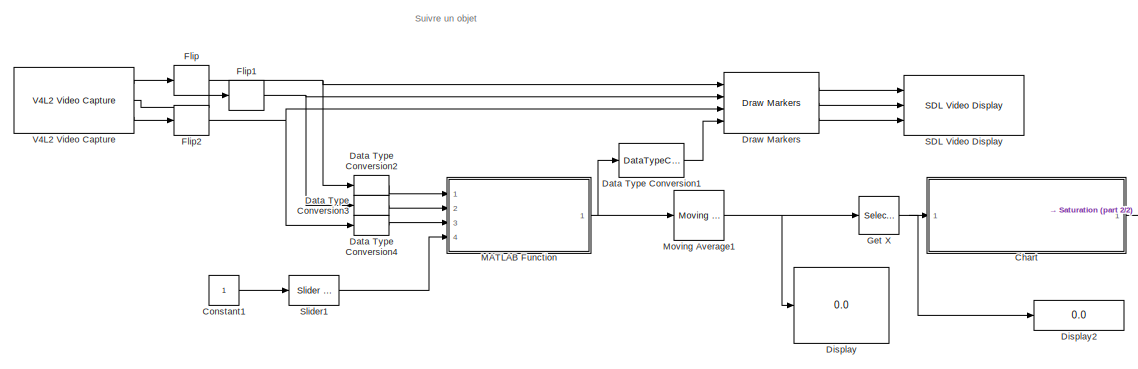
[diagram: root canvas - part 1/2, center side, full height]
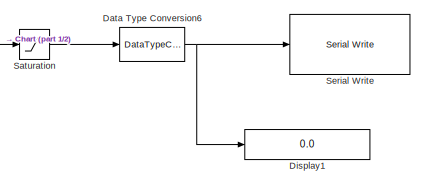
[diagram: root canvas - part 2/2, bottom right region]
MODEL slx_0ac4a83b77f4
KIND model
CONFIG AbsTol = auto
CONFIG EnableMultiTasking = on
CONFIG FixedStep = auto
CONFIG MaxStep = auto
CONFIG MinStep = auto
CONFIG RelTol = 1e-3
CONFIG SampleTimeConstraint = Unconstrained
CONFIG SolverName = ode45
CONFIG StartTime = 0.0
CONFIG StopTime = inf
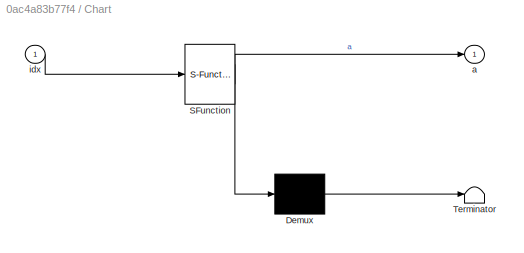
BLOCK [SubSystem] Chart
  ErrorFcn = Stateflow.Translate.translate
  PermitHierarchicalResolution = ExplicitOnly
  Ports = [1, 1]
  RequestExecContextInheritance = off
  SFBlockType = Chart
  TreatAsAtomicUnit = on
BLOCK [Demux] Chart/ Demux 
  Outputs = 1
  Ports = [1, 1]
BLOCK [S-Function] Chart/ SFunction 
  EnableBusSupport = off
  FunctionName = sf_sfun
  PortCounts = [1 2]
  Ports = [1, 2]
  SFcnIsStateOwnerBlock = off
  SFunctionDeploymentMode = off
  Tag = Stateflow S-Function 3
BLOCK [Terminator] Chart/ Terminator 
BLOCK [Outport] Chart/a
BLOCK [Inport] Chart/idx
BLOCK [Constant] Constant1
  OutDataTypeStr = uint8
  SampleTime = 0.1
BLOCK [DataTypeConversion] Data Type Conversion1
  RndMeth = Floor
  SaturateOnIntegerOverflow = off
BLOCK [DataTypeConversion] Data Type Conversion2
  OutDataTypeStr = double
  RndMeth = Floor
  SaturateOnIntegerOverflow = off
BLOCK [DataTypeConversion] Data Type Conversion3
  OutDataTypeStr = double
  RndMeth = Floor
  SaturateOnIntegerOverflow = off
BLOCK [DataTypeConversion] Data Type Conversion4
  OutDataTypeStr = double
  RndMeth = Floor
  SaturateOnIntegerOverflow = off
BLOCK [DataTypeConversion] Data Type Conversion6
  OutDataTypeStr = uint16
  RndMeth = Floor
  SaturateOnIntegerOverflow = off
BLOCK [Display] Display
  Decimation = 1
  Ports = [1]
BLOCK [Display] Display1
  Decimation = 1
  Format = long
  Ports = [1]
BLOCK [Display] Display2
  Decimation = 1
  Ports = [1]
BLOCK [Reference] Draw Markers  REF=visiontextngfix/Draw Markers
  Ports = [4, 3]
  SourceBlock = visiontextngfix/Draw Markers
  SourceProductBaseCode = VP
  SourceType = Draw Markers
BLOCK [DSPFlip] Flip
  dim = Rows
BLOCK [DSPFlip] Flip1
  dim = Rows
BLOCK [DSPFlip] Flip2
  dim = Rows
BLOCK [Selector] Get X
  IndexOptions = Index vector (dialog)
  Indices = 2
  InputPortWidth = 2
  OutputSizes = 1
  Ports = [1, 1]
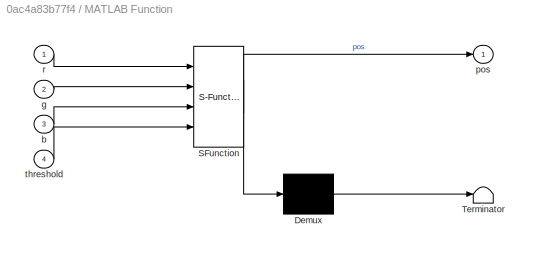
BLOCK [SubSystem] MATLAB Function
  ErrorFcn = Stateflow.Translate.translate
  PermitHierarchicalResolution = ExplicitOnly
  Ports = [4, 1]
  RequestExecContextInheritance = off
  SFBlockType = MATLAB Function
  TreatAsAtomicUnit = on
BLOCK [Demux] MATLAB Function/ Demux 
  Outputs = 1
  Ports = [1, 1]
BLOCK [S-Function] MATLAB Function/ SFunction 
  EnableBusSupport = off
  FunctionName = sf_sfun
  PortCounts = [4 2]
  Ports = [4, 2]
  SFcnIsStateOwnerBlock = off
  SFunctionDeploymentMode = off
  Tag = Stateflow S-Function 1
BLOCK [Terminator] MATLAB Function/ Terminator 
BLOCK [Inport] MATLAB Function/b
  Port = 3
BLOCK [Inport] MATLAB Function/g
  Port = 2
BLOCK [Outport] MATLAB Function/pos
  VectorParamsAs1DForOutWhenUnconnected = off
BLOCK [Inport] MATLAB Function/r
BLOCK [Inport] MATLAB Function/threshold
  Port = 4
BLOCK [Reference] Moving Average1  REF=dspstat3/Moving
Average
  Ports = [1, 1]
  SourceBlock = dspstat3/Moving\nAverage
  SourceProductBaseCode = DS
  SourceType = dsp.simulink.MovingAverage
BLOCK [Reference] SDL Video Display  REF=embedlinuxAVlib/SDL Video Display
  Ports = [3]
  SourceBlock = embedlinuxAVlib/SDL Video Display
  SourceProductBaseCode = SC_BEAGLEBONE_BLUE,EMBEDDEDLINUX,NVIDIA,RASPPIIO
  SourceType = SDL Video Display
BLOCK [Saturate] Saturation
  LowerLimit = 70
  UpperLimit = 110
BLOCK [Reference] Serial Write  REF=raspberrypiCommlib/Serial Write
  Ports = [1]
  SourceBlock = raspberrypiCommlib/Serial Write
  SourceProductBaseCode = RASPPI
  SourceType = Serial Write
BLOCK [Reference] Slider1  REF=simulink/Math
Operations/Slider
Gain
  Ports = [1, 1]
  SourceBlock = simulink/Math\nOperations/Slider\nGain
  SourceProductBaseCode = SL
  SourceType = Slider Gain
BLOCK [Reference] V4L2 Video Capture  REF=raspberrypiAVlib/V4L2 Video Capture
  Ports = [0, 3]
  SourceBlock = raspberrypiAVlib/V4L2 Video Capture
  SourceProductBaseCode = RASPPI
  SourceType = codertarget.raspi.internal.Raspiv4l2Capture
ANNOTATION (root): Suivre un objet
LINE Chart:1 -> Saturation:1
LINE Constant1:1 -> Slider1:1
LINE Data Type Conversion1:1 -> Draw Markers:4
LINE Data Type Conversion2:1 -> MATLAB Function:1
LINE Data Type Conversion3:1 -> MATLAB Function:2
LINE Data Type Conversion4:1 -> MATLAB Function:3
NET Data Type Conversion6:1 -> Display1:1, Serial Write:1
LINE Draw Markers:1 -> SDL Video Display:1
LINE Draw Markers:2 -> SDL Video Display:2
LINE Draw Markers:3 -> SDL Video Display:3
NET Flip1:1 -> Data Type Conversion3:1, Draw Markers:2
NET Flip2:1 -> Data Type Conversion4:1, Draw Markers:3
NET Flip:1 -> Data Type Conversion2:1, Draw Markers:1
NET Get X:1 -> Chart:1, Display2:1
NET MATLAB Function:1 -> Data Type Conversion1:1, Moving Average1:1
NET Moving Average1:1 -> Display:1, Get X:1
LINE Saturation:1 -> Data Type Conversion6:1
LINE Slider1:1 -> MATLAB Function:4
LINE V4L2 Video Capture:1 -> Flip:1
LINE V4L2 Video Capture:2 -> Flip1:1
LINE V4L2 Video Capture:3 -> Flip2:1
note: NET lines group one-source signal fan-out (src -> all destinations, sorted); 1:1 wires keep LINE
CHART MATLAB Function states=1 transitions=1
  STATE_LABEL 'eML_blk_kernel()'
  STATE_LABEL 'SCRIPT:\nfunction pos = findBall(r,g,b,threshold)\n%#codegen\n%% Calculate Green\n% Then we perform an arithmetic operation on the matrices as a whole to try\n% to create one matrix that represents an intensity of green.\njustGreen = g - r/2 - b/2;\n\n%% Threshold the image\n% Now we can set a threshold to separate the parts of the image that we\n% consider to be green from the rest.\nbw = justGreen > thresh...<+224ch>'
CHART Chart states=4 transitions=6
  STATE_LABEL 'Init\nen: a=90;'
  STATE_LABEL 'rien\n%onf fait rien'
  STATE_LABEL 'gauche\na=a-1;'
  STATE_LABEL 'droite\na=a+1;'
CHART  states=0 transitions=0
CHART  states=0 transitions=0
